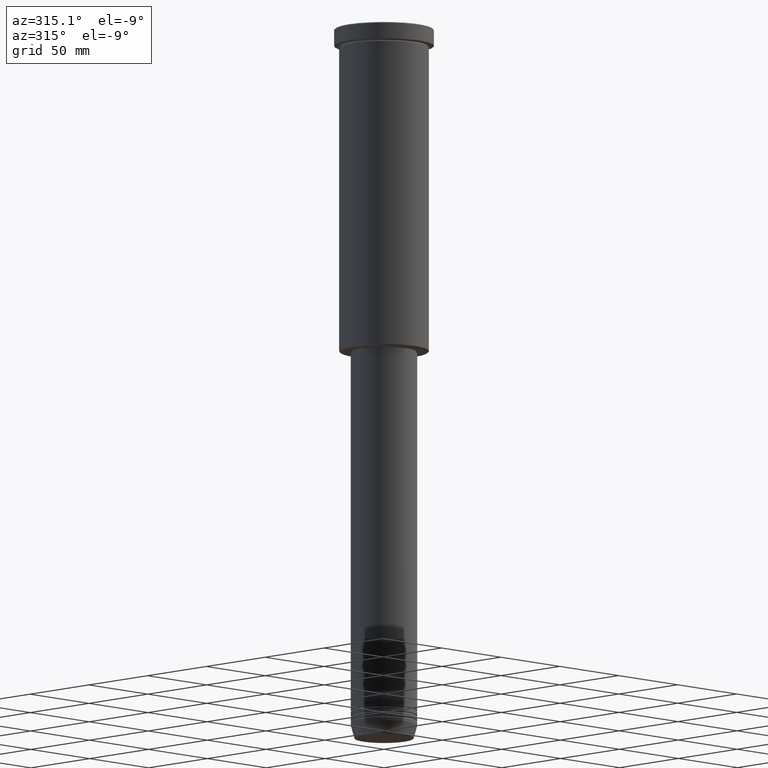
[diagram: clean part render]
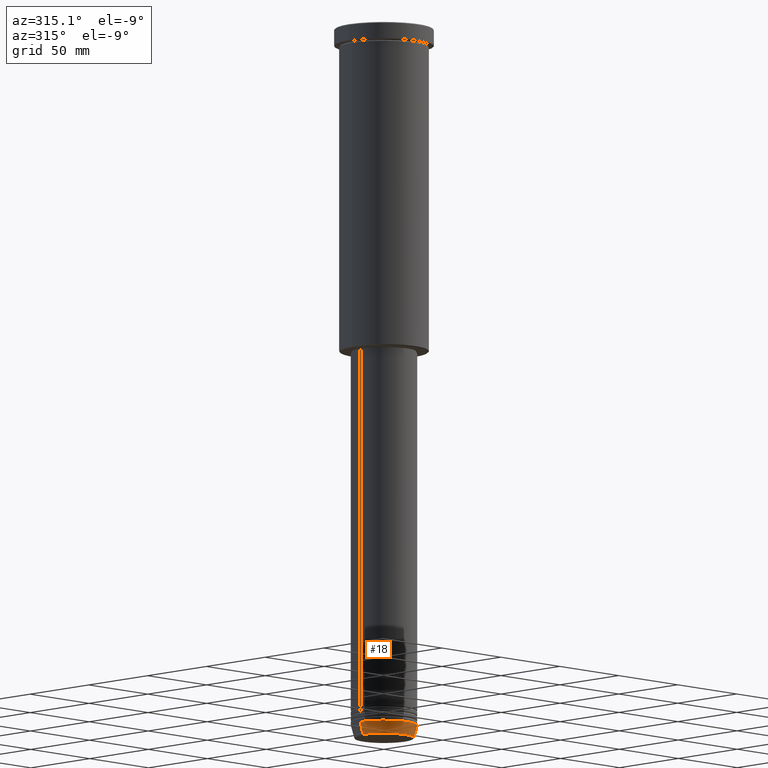
[diagram: same view with one face highlighted and labeled with its STEP entity id]
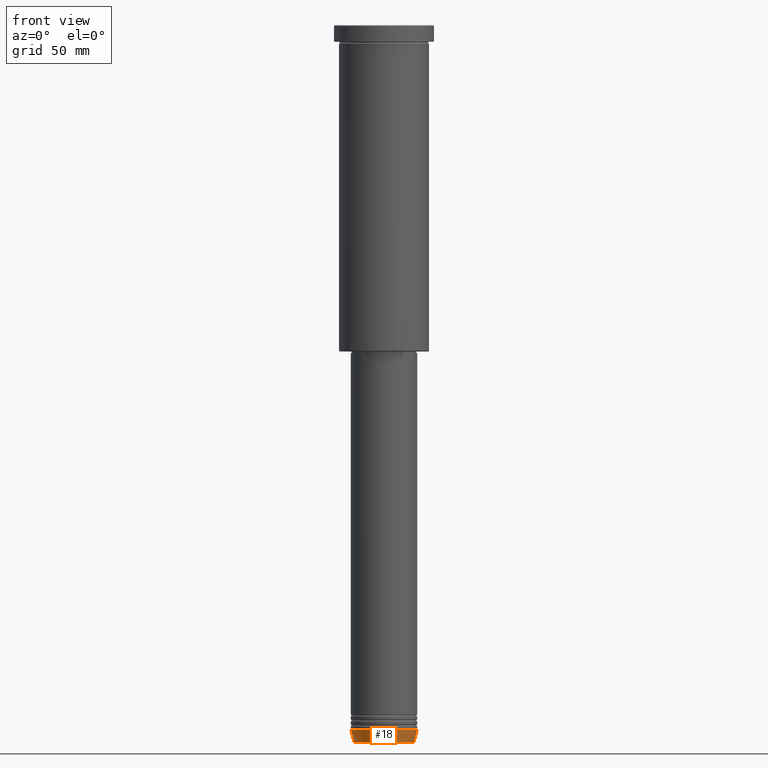
[diagram: same view with one face highlighted and labeled with its STEP entity id]
A machine part, auxiliary view. The second image highlights one B-rep face of the part: STEP entity #18.
A second angle (front view) of the same face is appended — the face is thin or edge-on in the first view.
In plain terms, the highlighted conical surface has half-angle 15 deg.
Its self-contained STEP definition (entity closure, byte-faithful):
#18 = ADVANCED_FACE ( 'NONE', ( #440 ), #1003, .T. ) ;
#75 = AXIS2_PLACEMENT_3D ( 'NONE', #804, #216, #930 ) ;
#104 = AXIS2_PLACEMENT_3D ( 'NONE', #597, #508, #838 ) ;
#147 = CARTESIAN_POINT ( 'NONE',  ( 0.000000000000000000, 0.000000000000000000, -423.0000000000000000 ) ) ;
#158 = CARTESIAN_POINT ( 'NONE',  ( -20.00000000000000000, 2.449293598294706513E-15, -423.0000000000000000 ) ) ;
#173 = CARTESIAN_POINT ( 'NONE',  ( -20.00000000000000000, 2.449293598294706513E-15, -423.0000000000000000 ) ) ;
#216 = DIRECTION ( 'NONE',  ( -0.000000000000000000, -0.000000000000000000, 1.000000000000000000 ) ) ;
#235 = DIRECTION ( 'NONE',  ( -0.000000000000000000, -0.000000000000000000, 1.000000000000000000 ) ) ;
#251 = EDGE_CURVE ( 'NONE', #1055, #616, #584, .T. ) ;
#313 = CIRCLE ( 'NONE', #75, 17.95570587970605558 ) ;
#440 = FACE_OUTER_BOUND ( 'NONE', #809, .T. ) ;
#456 = CIRCLE ( 'NONE', #104, 20.00000000000000000 ) ;
#491 = DIRECTION ( 'NONE',  ( -0.2588190451025209060, 3.169619151431766790E-17, 0.9659258262890682012 ) ) ;
#500 = CARTESIAN_POINT ( 'NONE',  ( 20.00000000000000000, 0.000000000000000000, -423.0000000000000000 ) ) ;
#508 = DIRECTION ( 'NONE',  ( -0.000000000000000000, -0.000000000000000000, 1.000000000000000000 ) ) ;
#521 = VECTOR ( 'NONE', #945, 1000.000000000000000 ) ;
#582 = CARTESIAN_POINT ( 'NONE',  ( 20.00000000000000000, 0.000000000000000000, -423.0000000000000000 ) ) ;
#584 = LINE ( 'NONE', #500, #521 ) ;
#588 = EDGE_CURVE ( 'NONE', #996, #616, #456, .T. ) ;
#597 = CARTESIAN_POINT ( 'NONE',  ( 0.000000000000000000, 0.000000000000000000, -423.0000000000000000 ) ) ;
#607 = LINE ( 'NONE', #158, #826 ) ;
#616 = VERTEX_POINT ( 'NONE', #582 ) ;
#651 = ORIENTED_EDGE ( 'NONE', *, *, #944, .T. ) ;
#664 = AXIS2_PLACEMENT_3D ( 'NONE', #147, #235, #880 ) ;
#741 = ORIENTED_EDGE ( 'NONE', *, *, #588, .F. ) ;
#800 = CARTESIAN_POINT ( 'NONE',  ( 17.95570587970605558, 0.000000000000000000, -430.6294095225512706 ) ) ;
#804 = CARTESIAN_POINT ( 'NONE',  ( 0.000000000000000000, 0.000000000000000000, -430.6294095225512706 ) ) ;
#809 = EDGE_LOOP ( 'NONE', ( #887, #651, #977, #741 ) ) ;
#826 = VECTOR ( 'NONE', #491, 1000.000000000000000 ) ;
#838 = DIRECTION ( 'NONE',  ( 1.000000000000000000, 0.000000000000000000, 0.000000000000000000 ) ) ;
#880 = DIRECTION ( 'NONE',  ( 1.000000000000000000, 0.000000000000000000, 0.000000000000000000 ) ) ;
#887 = ORIENTED_EDGE ( 'NONE', *, *, #890, .F. ) ;
#890 = EDGE_CURVE ( 'NONE', #955, #996, #607, .T. ) ;
#913 = CARTESIAN_POINT ( 'NONE',  ( -17.95570587970605558, 2.324116685748019793E-15, -430.6294095225512706 ) ) ;
#930 = DIRECTION ( 'NONE',  ( 1.000000000000000000, 0.000000000000000000, 0.000000000000000000 ) ) ;
#944 = EDGE_CURVE ( 'NONE', #955, #1055, #313, .T. ) ;
#945 = DIRECTION ( 'NONE',  ( 0.2588190451025209060, 0.000000000000000000, 0.9659258262890682012 ) ) ;
#955 = VERTEX_POINT ( 'NONE', #913 ) ;
#977 = ORIENTED_EDGE ( 'NONE', *, *, #251, .T. ) ;
#996 = VERTEX_POINT ( 'NONE', #173 ) ;
#1003 = CONICAL_SURFACE ( 'NONE', #664, 20.00000000000000000, 0.2617993877991495744 ) ;
#1055 = VERTEX_POINT ( 'NONE', #800 ) ;